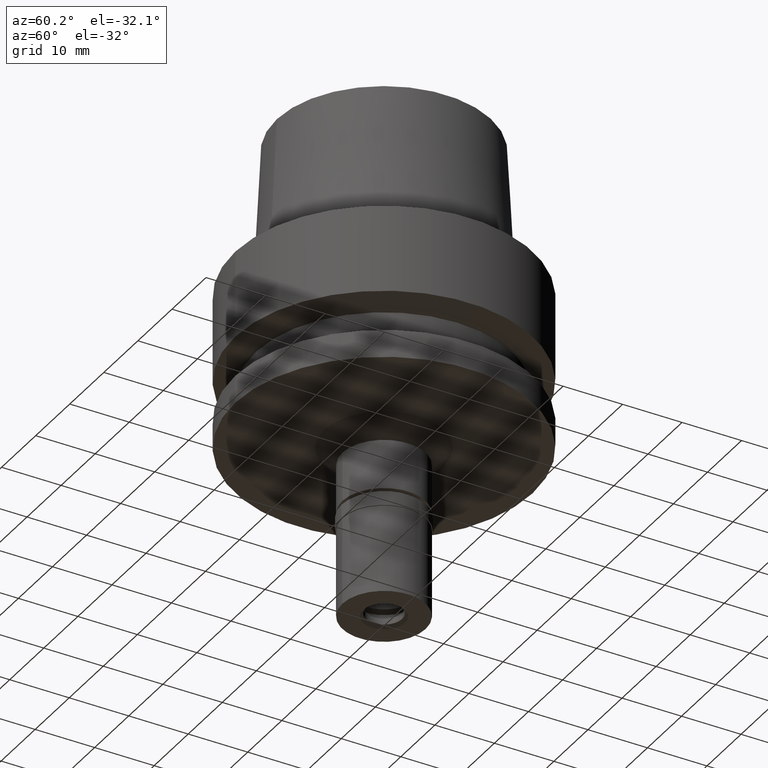
[diagram: clean part render]
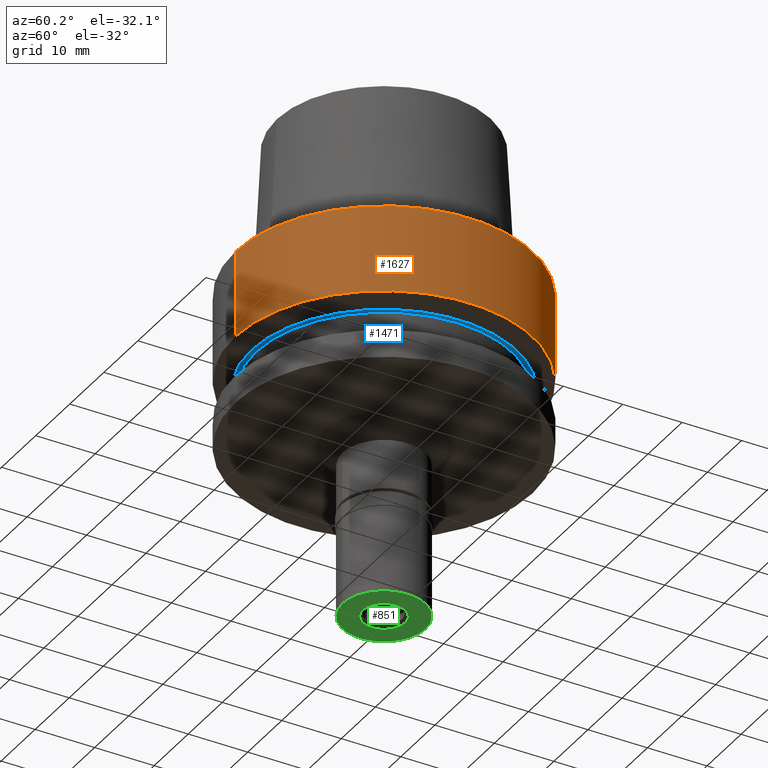
[diagram: same view with three faces highlighted in distinct colors, each labeled with its STEP entity id]
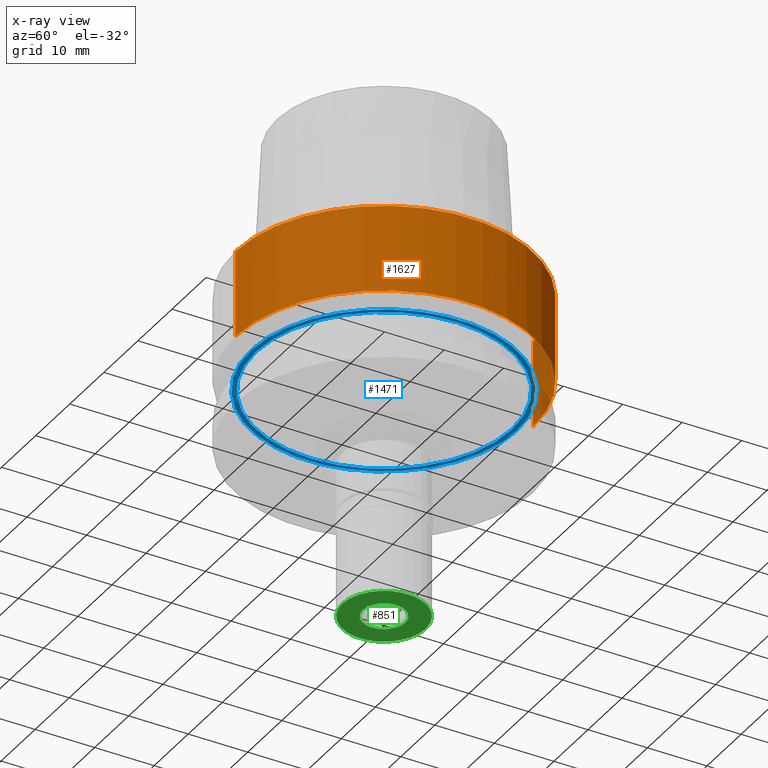
[diagram: x-ray of the same camera — body ghosted, the three highlighted faces saturated]
A machine part, auxiliary view with three faces highlighted in distinct colors.
The next image is the same camera in x-ray (body ghosted, the three faces saturated) — at least one of them is partly hidden behind the body in this view.
Their STEP definitions:

[orange] entity #1627 — the highlighted cylindrical surface (partial cylindrical patch) has radius 25 mm, axis along (0, 0, 1).
#226 = VECTOR ( 'NONE', #522, 1000.000000000000000 ) ;
#248 = DIRECTION ( 'NONE',  ( 0.0000000000000000000, -1.000000000000000000, 0.0000000000000000000 ) ) ;
#383 = DIRECTION ( 'NONE',  ( 0.0000000000000000000, 1.000000000000000000, 0.0000000000000000000 ) ) ;
#460 = VERTEX_POINT ( 'NONE', #1518 ) ;
#522 = DIRECTION ( 'NONE',  ( 0.0000000000000000000, 0.0000000000000000000, -1.000000000000000000 ) ) ;
#526 = LINE ( 'NONE', #944, #978 ) ;
#551 = DIRECTION ( 'NONE',  ( 0.0000000000000000000, 0.0000000000000000000, 1.000000000000000000 ) ) ;
#580 = EDGE_CURVE ( 'NONE', #460, #2005, #526, .T. ) ;
#773 = DIRECTION ( 'NONE',  ( 0.0000000000000000000, 1.000000000000000000, 0.0000000000000000000 ) ) ;
#845 = DIRECTION ( 'NONE',  ( 0.0000000000000000000, 0.0000000000000000000, -1.000000000000000000 ) ) ;
#883 = EDGE_CURVE ( 'NONE', #1071, #2421, #927, .T. ) ;
#927 = LINE ( 'NONE', #2613, #226 ) ;
#944 = CARTESIAN_POINT ( 'NONE',  ( 0.0000000000000000000, 25.00000000000000000, 2.368475785866999778E-14 ) ) ;
#964 = ORIENTED_EDGE ( 'NONE', *, *, #1888, .T. ) ;
#978 = VECTOR ( 'NONE', #2575, 1000.000000000000000 ) ;
#1029 = EDGE_LOOP ( 'NONE', ( #964, #2239, #1036, #1785 ) ) ;
#1036 = ORIENTED_EDGE ( 'NONE', *, *, #1957, .T. ) ;
#1071 = VERTEX_POINT ( 'NONE', #2679 ) ;
#1376 = AXIS2_PLACEMENT_3D ( 'NONE', #2087, #845, #383 ) ;
#1479 = CARTESIAN_POINT ( 'NONE',  ( 0.0000000000000000000, 25.00000000000000000, -14.61835441913999922 ) ) ;
#1518 = CARTESIAN_POINT ( 'NONE',  ( 0.0000000000000000000, 25.00000000000000000, 3.552713678800999489E-14 ) ) ;
#1586 = AXIS2_PLACEMENT_3D ( 'NONE', #2114, #1929, #248 ) ;
#1627 = ADVANCED_FACE ( 'NONE', ( #2438 ), #2637, .T. ) ;
#1785 = ORIENTED_EDGE ( 'NONE', *, *, #580, .F. ) ;
#1888 = EDGE_CURVE ( 'NONE', #460, #1071, #1930, .T. ) ;
#1929 = DIRECTION ( 'NONE',  ( 0.0000000000000000000, 0.0000000000000000000, 1.000000000000000000 ) ) ;
#1930 = CIRCLE ( 'NONE', #1376, 25.00000000000000000 ) ;
#1957 = EDGE_CURVE ( 'NONE', #2421, #2005, #1977, .T. ) ;
#1977 = CIRCLE ( 'NONE', #1586, 25.00000000000000000 ) ;
#2005 = VERTEX_POINT ( 'NONE', #1479 ) ;
#2087 = CARTESIAN_POINT ( 'NONE',  ( 0.0000000000000000000, 0.0000000000000000000, 3.552713678800999489E-14 ) ) ;
#2114 = CARTESIAN_POINT ( 'NONE',  ( 0.0000000000000000000, 0.0000000000000000000, -14.61835441913999922 ) ) ;
#2227 = AXIS2_PLACEMENT_3D ( 'NONE', #2649, #551, #773 ) ;
#2239 = ORIENTED_EDGE ( 'NONE', *, *, #883, .T. ) ;
#2356 = CARTESIAN_POINT ( 'NONE',  ( 0.0000000000000000000, -25.00000000000000000, -14.61835441913999922 ) ) ;
#2421 = VERTEX_POINT ( 'NONE', #2356 ) ;
#2438 = FACE_OUTER_BOUND ( 'NONE', #1029, .T. ) ;
#2575 = DIRECTION ( 'NONE',  ( 0.0000000000000000000, 0.0000000000000000000, -1.000000000000000000 ) ) ;
#2613 = CARTESIAN_POINT ( 'NONE',  ( 0.0000000000000000000, -25.00000000000000000, 2.368475785866999778E-14 ) ) ;
#2637 = CYLINDRICAL_SURFACE ( 'NONE', #2227, 25.00000000000000000 ) ;
#2649 = CARTESIAN_POINT ( 'NONE',  ( 0.0000000000000000000, 0.0000000000000000000, -54.80000000000000426 ) ) ;
#2679 = CARTESIAN_POINT ( 'NONE',  ( 0.0000000000000000000, -25.00000000000000000, 3.552713678800999489E-14 ) ) ;

[blue] entity #1471 — the highlighted planar face has unit normal (0, 0, 1).
#230 = EDGE_CURVE ( 'NONE', #2639, #2569, #1544, .T. ) ;
#273 = CARTESIAN_POINT ( 'NONE',  ( 0.0000000000000000000, 21.50000000000000000, -16.12500000000000000 ) ) ;
#293 = FACE_OUTER_BOUND ( 'NONE', #539, .T. ) ;
#298 = EDGE_CURVE ( 'NONE', #966, #2319, #1205, .T. ) ;
#302 = DIRECTION ( 'NONE',  ( 1.000000000000000000, 0.0000000000000000000, 0.0000000000000000000 ) ) ;
#341 = CARTESIAN_POINT ( 'NONE',  ( 0.0000000000000000000, 0.0000000000000000000, -16.12500000000000000 ) ) ;
#351 = AXIS2_PLACEMENT_3D ( 'NONE', #2377, #2172, #302 ) ;
#451 = DIRECTION ( 'NONE',  ( 0.0000000000000000000, 0.0000000000000000000, -1.000000000000000000 ) ) ;
#484 = CIRCLE ( 'NONE', #837, 21.50000000000000000 ) ;
#521 = ORIENTED_EDGE ( 'NONE', *, *, #934, .F. ) ;
#539 = EDGE_LOOP ( 'NONE', ( #1718, #521 ) ) ;
#662 = CARTESIAN_POINT ( 'NONE',  ( 0.0000000000000000000, 0.0000000000000000000, -16.12500000000000000 ) ) ;
#710 = AXIS2_PLACEMENT_3D ( 'NONE', #662, #2093, #817 ) ;
#746 = CARTESIAN_POINT ( 'NONE',  ( 0.0000000000000000000, 0.0000000000000000000, -16.12500000000000000 ) ) ;
#817 = DIRECTION ( 'NONE',  ( 0.0000000000000000000, -1.000000000000000000, 0.0000000000000000000 ) ) ;
#837 = AXIS2_PLACEMENT_3D ( 'NONE', #1141, #451, #880 ) ;
#880 = DIRECTION ( 'NONE',  ( 0.0000000000000000000, 1.000000000000000000, 0.0000000000000000000 ) ) ;
#922 = PLANE ( 'NONE',  #351 ) ;
#934 = EDGE_CURVE ( 'NONE', #2569, #2639, #1201, .T. ) ;
#966 = VERTEX_POINT ( 'NONE', #2205 ) ;
#1059 = CARTESIAN_POINT ( 'NONE',  ( 0.0000000000000000000, 22.28529260494000042, -16.12500000000000000 ) ) ;
#1141 = CARTESIAN_POINT ( 'NONE',  ( 0.0000000000000000000, 0.0000000000000000000, -16.12500000000000000 ) ) ;
#1190 = DIRECTION ( 'NONE',  ( 0.0000000000000000000, 0.0000000000000000000, 1.000000000000000000 ) ) ;
#1201 = CIRCLE ( 'NONE', #2402, 22.28529260494000042 ) ;
#1205 = CIRCLE ( 'NONE', #710, 21.50000000000000000 ) ;
#1250 = CARTESIAN_POINT ( 'NONE',  ( 0.0000000000000000000, -22.28529260494000042, -16.12500000000000000 ) ) ;
#1356 = FACE_BOUND ( 'NONE', #1399, .T. ) ;
#1399 = EDGE_LOOP ( 'NONE', ( #2032, #2245 ) ) ;
#1471 = ADVANCED_FACE ( 'NONE', ( #293, #1356 ), #922, .F. ) ;
#1544 = CIRCLE ( 'NONE', #2583, 22.28529260494000042 ) ;
#1718 = ORIENTED_EDGE ( 'NONE', *, *, #230, .F. ) ;
#1966 = DIRECTION ( 'NONE',  ( 0.0000000000000000000, -1.000000000000000000, 0.0000000000000000000 ) ) ;
#2013 = DIRECTION ( 'NONE',  ( 0.0000000000000000000, 1.000000000000000000, 0.0000000000000000000 ) ) ;
#2032 = ORIENTED_EDGE ( 'NONE', *, *, #2066, .F. ) ;
#2066 = EDGE_CURVE ( 'NONE', #2319, #966, #484, .T. ) ;
#2093 = DIRECTION ( 'NONE',  ( 0.0000000000000000000, 0.0000000000000000000, -1.000000000000000000 ) ) ;
#2172 = DIRECTION ( 'NONE',  ( 0.0000000000000000000, 0.0000000000000000000, 1.000000000000000000 ) ) ;
#2205 = CARTESIAN_POINT ( 'NONE',  ( 0.0000000000000000000, -21.50000000000000000, -16.12500000000000000 ) ) ;
#2245 = ORIENTED_EDGE ( 'NONE', *, *, #298, .F. ) ;
#2319 = VERTEX_POINT ( 'NONE', #273 ) ;
#2377 = CARTESIAN_POINT ( 'NONE',  ( 0.0000000000000000000, 0.0000000000000000000, -16.12500000000000000 ) ) ;
#2402 = AXIS2_PLACEMENT_3D ( 'NONE', #746, #2414, #1966 ) ;
#2414 = DIRECTION ( 'NONE',  ( 0.0000000000000000000, 0.0000000000000000000, 1.000000000000000000 ) ) ;
#2569 = VERTEX_POINT ( 'NONE', #1250 ) ;
#2583 = AXIS2_PLACEMENT_3D ( 'NONE', #341, #1190, #2013 ) ;
#2639 = VERTEX_POINT ( 'NONE', #1059 ) ;

[green] entity #851 — the highlighted planar face has unit normal (0, 0, 1).
#94 = AXIS2_PLACEMENT_3D ( 'NONE', #646, #2316, #207 ) ;
#207 = DIRECTION ( 'NONE',  ( 0.0000000000000000000, 1.000000000000000000, 0.0000000000000000000 ) ) ;
#238 = DIRECTION ( 'NONE',  ( 0.0000000000000000000, 0.0000000000000000000, -1.000000000000000000 ) ) ;
#316 = AXIS2_PLACEMENT_3D ( 'NONE', #2061, #1867, #822 ) ;
#347 = DIRECTION ( 'NONE',  ( 0.0000000000000000000, 0.0000000000000000000, 1.000000000000000000 ) ) ;
#365 = EDGE_CURVE ( 'NONE', #2086, #2596, #1112, .T. ) ;
#371 = VERTEX_POINT ( 'NONE', #608 ) ;
#402 = ORIENTED_EDGE ( 'NONE', *, *, #365, .F. ) ;
#413 = ORIENTED_EDGE ( 'NONE', *, *, #1938, .F. ) ;
#478 = CIRCLE ( 'NONE', #2091, 7.000000000000000000 ) ;
#560 = DIRECTION ( 'NONE',  ( 0.0000000000000000000, 0.0000000000000000000, 1.000000000000000000 ) ) ;
#608 = CARTESIAN_POINT ( 'NONE',  ( 0.0000000000000000000, 3.550000000000000266, -17.00000000000000000 ) ) ;
#646 = CARTESIAN_POINT ( 'NONE',  ( 0.0000000000000000000, 0.0000000000000000000, -17.00000000000000000 ) ) ;
#682 = EDGE_LOOP ( 'NONE', ( #402, #1207 ) ) ;
#822 = DIRECTION ( 'NONE',  ( 0.0000000000000000000, 1.000000000000000000, 0.0000000000000000000 ) ) ;
#851 = ADVANCED_FACE ( 'NONE', ( #1411, #1400 ), #1803, .F. ) ;
#956 = DIRECTION ( 'NONE',  ( 1.000000000000000000, 0.0000000000000000000, 0.0000000000000000000 ) ) ;
#969 = CARTESIAN_POINT ( 'NONE',  ( 0.0000000000000000000, 0.0000000000000000000, -17.00000000000000000 ) ) ;
#1062 = CIRCLE ( 'NONE', #1319, 3.550000000000000266 ) ;
#1112 = CIRCLE ( 'NONE', #94, 7.000000000000000000 ) ;
#1126 = CARTESIAN_POINT ( 'NONE',  ( 0.0000000000000000000, 7.000000000000000000, -17.00000000000000000 ) ) ;
#1207 = ORIENTED_EDGE ( 'NONE', *, *, #1409, .F. ) ;
#1226 = EDGE_CURVE ( 'NONE', #1309, #371, #1062, .T. ) ;
#1263 = CARTESIAN_POINT ( 'NONE',  ( 0.0000000000000000000, -7.000000000000000000, -17.00000000000000000 ) ) ;
#1309 = VERTEX_POINT ( 'NONE', #2089 ) ;
#1319 = AXIS2_PLACEMENT_3D ( 'NONE', #2524, #238, #1499 ) ;
#1400 = FACE_BOUND ( 'NONE', #2586, .T. ) ;
#1409 = EDGE_CURVE ( 'NONE', #2596, #2086, #478, .T. ) ;
#1411 = FACE_OUTER_BOUND ( 'NONE', #682, .T. ) ;
#1499 = DIRECTION ( 'NONE',  ( 0.0000000000000000000, -1.000000000000000000, 0.0000000000000000000 ) ) ;
#1803 = PLANE ( 'NONE',  #2052 ) ;
#1812 = DIRECTION ( 'NONE',  ( 0.0000000000000000000, -1.000000000000000000, 0.0000000000000000000 ) ) ;
#1867 = DIRECTION ( 'NONE',  ( 0.0000000000000000000, 0.0000000000000000000, -1.000000000000000000 ) ) ;
#1927 = CIRCLE ( 'NONE', #316, 3.550000000000000266 ) ;
#1938 = EDGE_CURVE ( 'NONE', #371, #1309, #1927, .T. ) ;
#1976 = CARTESIAN_POINT ( 'NONE',  ( 0.0000000000000000000, 0.0000000000000000000, -17.00000000000000000 ) ) ;
#2052 = AXIS2_PLACEMENT_3D ( 'NONE', #969, #347, #956 ) ;
#2061 = CARTESIAN_POINT ( 'NONE',  ( 0.0000000000000000000, 0.0000000000000000000, -17.00000000000000000 ) ) ;
#2086 = VERTEX_POINT ( 'NONE', #1126 ) ;
#2089 = CARTESIAN_POINT ( 'NONE',  ( 0.0000000000000000000, -3.550000000000000266, -17.00000000000000000 ) ) ;
#2091 = AXIS2_PLACEMENT_3D ( 'NONE', #1976, #560, #1812 ) ;
#2316 = DIRECTION ( 'NONE',  ( 0.0000000000000000000, 0.0000000000000000000, 1.000000000000000000 ) ) ;
#2461 = ORIENTED_EDGE ( 'NONE', *, *, #1226, .F. ) ;
#2524 = CARTESIAN_POINT ( 'NONE',  ( 0.0000000000000000000, 0.0000000000000000000, -17.00000000000000000 ) ) ;
#2586 = EDGE_LOOP ( 'NONE', ( #413, #2461 ) ) ;
#2596 = VERTEX_POINT ( 'NONE', #1263 ) ;